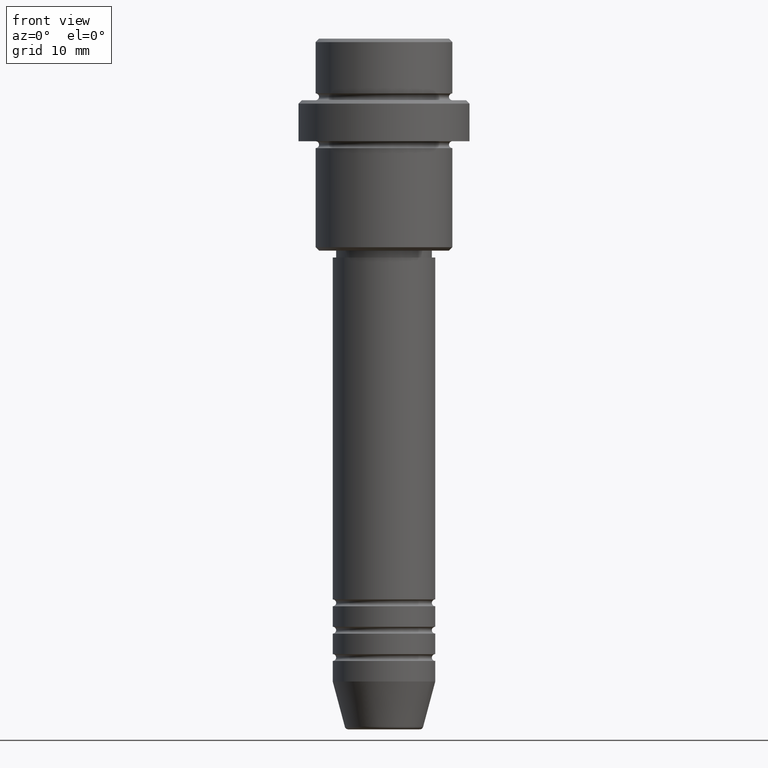
[diagram: clean part render]
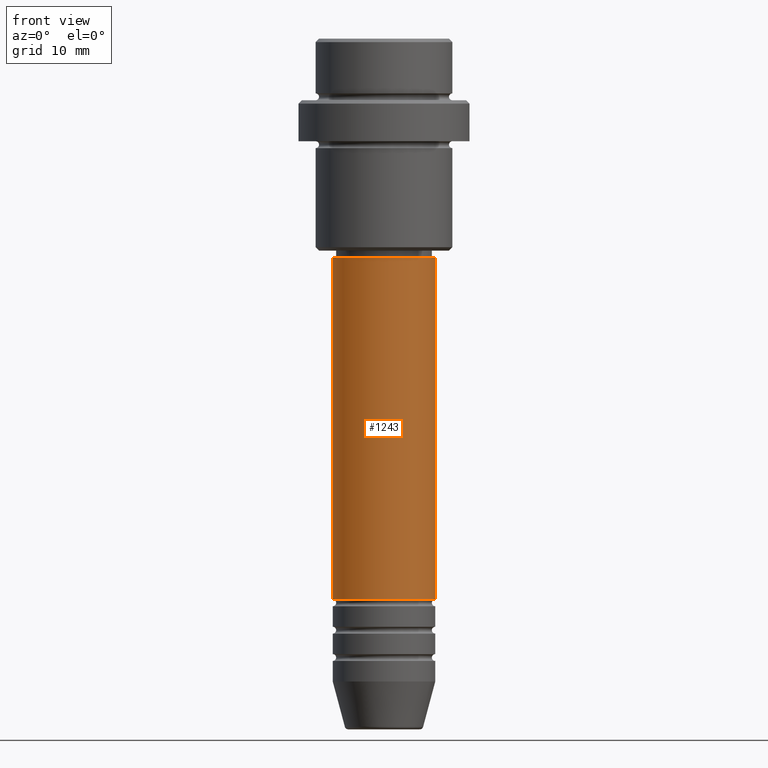
[diagram: same view with one face highlighted and labeled with its STEP entity id]
A machine part, front view. The second image highlights one B-rep face of the part: STEP entity #1243.
In plain terms, the highlighted cylindrical surface (partial cylindrical patch) has radius 7.5 mm, axis along (-0, -0, 1).
Its self-contained STEP definition (entity closure, byte-faithful):
#7 = EDGE_CURVE ( 'NONE', #517, #660, #491, .T. ) ;
#78 = LINE ( 'NONE', #507, #486 ) ;
#152 = ORIENTED_EDGE ( 'NONE', *, *, #915, .T. ) ;
#153 = FACE_OUTER_BOUND ( 'NONE', #411, .T. ) ;
#178 = CARTESIAN_POINT ( 'NONE',  ( -7.500000000000000000, 9.184850993605147944E-16, 0.000000000000000000 ) ) ;
#260 = AXIS2_PLACEMENT_3D ( 'NONE', #410, #941, #826 ) ;
#261 = VERTEX_POINT ( 'NONE', #913 ) ;
#264 = CYLINDRICAL_SURFACE ( 'NONE', #260, 7.500000000000000000 ) ;
#349 = AXIS2_PLACEMENT_3D ( 'NONE', #656, #1096, #432 ) ;
#410 = CARTESIAN_POINT ( 'NONE',  ( 0.000000000000000000, 0.000000000000000000, 0.000000000000000000 ) ) ;
#411 = EDGE_LOOP ( 'NONE', ( #1021, #1032, #152, #586 ) ) ;
#432 = DIRECTION ( 'NONE',  ( 1.000000000000000000, 0.000000000000000000, 0.000000000000000000 ) ) ;
#448 = CARTESIAN_POINT ( 'NONE',  ( -7.500000000000000000, 9.184850993605147944E-16, -31.99999999999997868 ) ) ;
#486 = VECTOR ( 'NONE', #951, 1000.000000000000000 ) ;
#491 = LINE ( 'NONE', #178, #1393 ) ;
#507 = CARTESIAN_POINT ( 'NONE',  ( 7.500000000000000000, 0.000000000000000000, 0.000000000000000000 ) ) ;
#517 = VERTEX_POINT ( 'NONE', #671 ) ;
#586 = ORIENTED_EDGE ( 'NONE', *, *, #744, .F. ) ;
#656 = CARTESIAN_POINT ( 'NONE',  ( 0.000000000000000000, 0.000000000000000000, -81.99999999999987210 ) ) ;
#660 = VERTEX_POINT ( 'NONE', #448 ) ;
#671 = CARTESIAN_POINT ( 'NONE',  ( -7.500000000000000000, 9.184850993605147944E-16, -81.99999999999987210 ) ) ;
#720 = AXIS2_PLACEMENT_3D ( 'NONE', #918, #820, #1358 ) ;
#744 = EDGE_CURVE ( 'NONE', #660, #261, #1335, .T. ) ;
#762 = CIRCLE ( 'NONE', #349, 7.500000000000000000 ) ;
#820 = DIRECTION ( 'NONE',  ( -0.000000000000000000, -0.000000000000000000, 1.000000000000000000 ) ) ;
#826 = DIRECTION ( 'NONE',  ( 1.000000000000000000, 0.000000000000000000, 0.000000000000000000 ) ) ;
#913 = CARTESIAN_POINT ( 'NONE',  ( 7.500000000000000000, 0.000000000000000000, -31.99999999999997868 ) ) ;
#915 = EDGE_CURVE ( 'NONE', #1203, #261, #78, .T. ) ;
#918 = CARTESIAN_POINT ( 'NONE',  ( 0.000000000000000000, 0.000000000000000000, -31.99999999999997868 ) ) ;
#941 = DIRECTION ( 'NONE',  ( -0.000000000000000000, -0.000000000000000000, 1.000000000000000000 ) ) ;
#951 = DIRECTION ( 'NONE',  ( -0.000000000000000000, -0.000000000000000000, 1.000000000000000000 ) ) ;
#971 = EDGE_CURVE ( 'NONE', #517, #1203, #762, .T. ) ;
#1021 = ORIENTED_EDGE ( 'NONE', *, *, #7, .F. ) ;
#1032 = ORIENTED_EDGE ( 'NONE', *, *, #971, .T. ) ;
#1055 = DIRECTION ( 'NONE',  ( -0.000000000000000000, -0.000000000000000000, 1.000000000000000000 ) ) ;
#1096 = DIRECTION ( 'NONE',  ( -0.000000000000000000, -0.000000000000000000, 1.000000000000000000 ) ) ;
#1149 = CARTESIAN_POINT ( 'NONE',  ( 7.500000000000000000, 0.000000000000000000, -81.99999999999987210 ) ) ;
#1203 = VERTEX_POINT ( 'NONE', #1149 ) ;
#1243 = ADVANCED_FACE ( 'NONE', ( #153 ), #264, .T. ) ;
#1335 = CIRCLE ( 'NONE', #720, 7.500000000000000000 ) ;
#1358 = DIRECTION ( 'NONE',  ( 1.000000000000000000, 0.000000000000000000, 0.000000000000000000 ) ) ;
#1393 = VECTOR ( 'NONE', #1055, 1000.000000000000000 ) ;